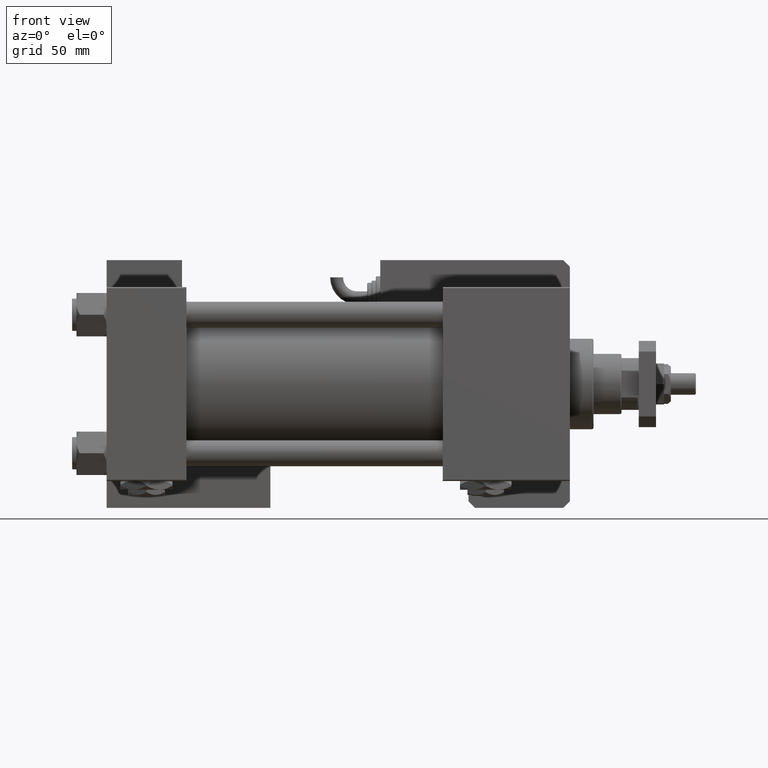
[diagram: clean part render]
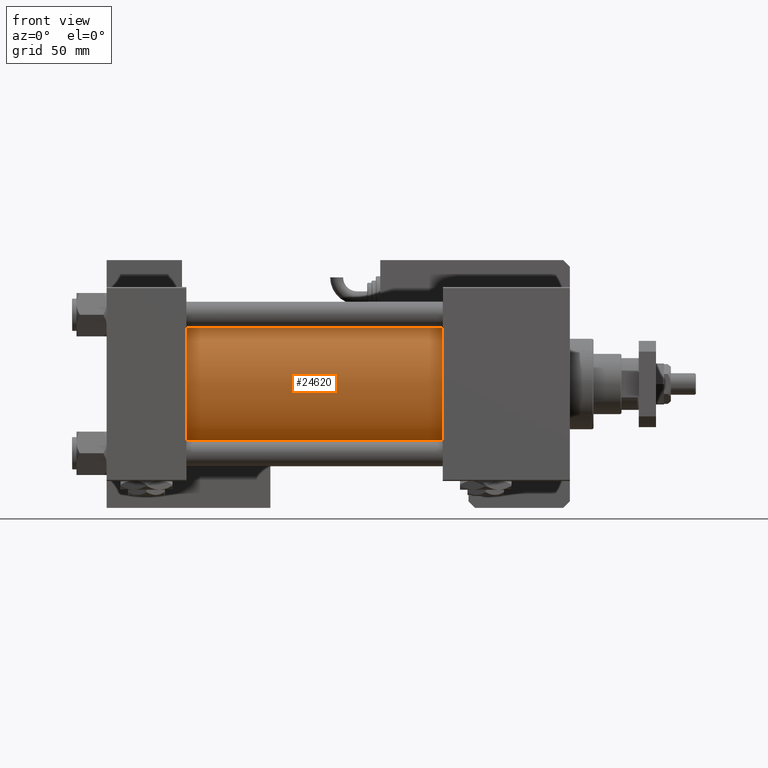
[diagram: same view with one face highlighted and labeled with its STEP entity id]
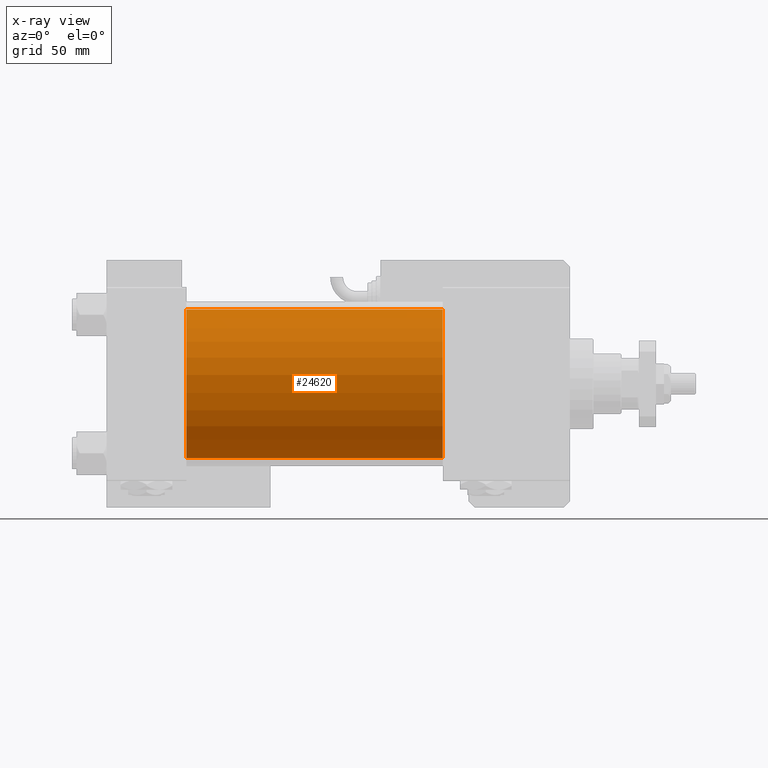
[diagram: x-ray of the same camera — body ghosted, the highlighted face saturated]
A machine part, front view. The second image highlights one B-rep face of the part: STEP entity #24620.
The next image is the same camera in x-ray: the body ghosted, the highlighted face saturated — about 0% of this face is hidden behind the body in this view.
In plain terms, the highlighted cylindrical surface (partial cylindrical patch) has radius 34.5 mm, axis along (-1, -0, -0).
Its self-contained STEP definition (entity closure, byte-faithful):
#3242 = CYLINDRICAL_SURFACE ( 'NONE', #13889, 34.50000000000000000 ) ;
#5000 = ORIENTED_EDGE ( 'NONE', *, *, #15806, .F. ) ;
#8130 = CARTESIAN_POINT ( 'NONE',  ( 156.0000000000000000, 1.622946243093158675E-15, -34.50000000000000000 ) ) ;
#9556 = DIRECTION ( 'NONE',  ( 0.000000000000000000, 0.000000000000000000, -1.000000000000000000 ) ) ;
#11011 = LINE ( 'NONE', #42393, #25005 ) ;
#11721 = CARTESIAN_POINT ( 'NONE',  ( 37.00000000000000711, -2.602085213965210642E-15, 0.000000000000000000 ) ) ;
#12627 = CIRCLE ( 'NONE', #29471, 34.50000000000000000 ) ;
#12772 = CARTESIAN_POINT ( 'NONE',  ( 37.00000000000000711, 1.622946243093158675E-15, -34.50000000000000000 ) ) ;
#13514 = VECTOR ( 'NONE', #17223, 1000.000000000000000 ) ;
#13612 = EDGE_CURVE ( 'NONE', #27463, #48833, #44418, .T. ) ;
#13889 = AXIS2_PLACEMENT_3D ( 'NONE', #39012, #48113, #52789 ) ;
#15806 = EDGE_CURVE ( 'NONE', #48833, #41184, #26884, .T. ) ;
#15809 = ORIENTED_EDGE ( 'NONE', *, *, #22057, .T. ) ;
#16476 = EDGE_CURVE ( 'NONE', #55346, #41184, #12627, .T. ) ;
#17223 = DIRECTION ( 'NONE',  ( -1.000000000000000000, -0.000000000000000000, -0.000000000000000000 ) ) ;
#18373 = CARTESIAN_POINT ( 'NONE',  ( 156.0000000000000000, 1.622946243093158675E-15, -34.50000000000000000 ) ) ;
#18639 = DIRECTION ( 'NONE',  ( 1.000000000000000000, 0.000000000000000000, 0.000000000000000000 ) ) ;
#19636 = CARTESIAN_POINT ( 'NONE',  ( 37.00000000000000711, -2.602085213965210642E-15, 34.50000000000000000 ) ) ;
#19873 = ORIENTED_EDGE ( 'NONE', *, *, #16476, .T. ) ;
#22057 = EDGE_CURVE ( 'NONE', #27463, #55346, #11011, .T. ) ;
#24620 = ADVANCED_FACE ( 'NONE', ( #43428 ), #3242, .T. ) ;
#25005 = VECTOR ( 'NONE', #50622, 1000.000000000000000 ) ;
#26884 = LINE ( 'NONE', #8130, #13514 ) ;
#27463 = VERTEX_POINT ( 'NONE', #40579 ) ;
#29311 = DIRECTION ( 'NONE',  ( 0.000000000000000000, 0.000000000000000000, 1.000000000000000000 ) ) ;
#29471 = AXIS2_PLACEMENT_3D ( 'NONE', #11721, #33696, #29311 ) ;
#29504 = EDGE_LOOP ( 'NONE', ( #5000, #56020, #15809, #19873 ) ) ;
#33696 = DIRECTION ( 'NONE',  ( 1.000000000000000000, -0.000000000000000000, 0.000000000000000000 ) ) ;
#35064 = AXIS2_PLACEMENT_3D ( 'NONE', #35947, #18639, #9556 ) ;
#35947 = CARTESIAN_POINT ( 'NONE',  ( 156.0000000000000000, -2.602085213965210642E-15, 0.000000000000000000 ) ) ;
#39012 = CARTESIAN_POINT ( 'NONE',  ( 156.0000000000000000, -2.602085213965210642E-15, 0.000000000000000000 ) ) ;
#40579 = CARTESIAN_POINT ( 'NONE',  ( 156.0000000000000000, -2.602085213965210642E-15, 34.50000000000000000 ) ) ;
#41184 = VERTEX_POINT ( 'NONE', #12772 ) ;
#42393 = CARTESIAN_POINT ( 'NONE',  ( 156.0000000000000000, -2.602085213965210642E-15, 34.50000000000000000 ) ) ;
#43428 = FACE_OUTER_BOUND ( 'NONE', #29504, .T. ) ;
#44418 = CIRCLE ( 'NONE', #35064, 34.50000000000000000 ) ;
#48113 = DIRECTION ( 'NONE',  ( -1.000000000000000000, -0.000000000000000000, -0.000000000000000000 ) ) ;
#48833 = VERTEX_POINT ( 'NONE', #18373 ) ;
#50622 = DIRECTION ( 'NONE',  ( -1.000000000000000000, -0.000000000000000000, -0.000000000000000000 ) ) ;
#52789 = DIRECTION ( 'NONE',  ( 0.000000000000000000, 0.000000000000000000, 1.000000000000000000 ) ) ;
#55346 = VERTEX_POINT ( 'NONE', #19636 ) ;
#56020 = ORIENTED_EDGE ( 'NONE', *, *, #13612, .F. ) ;